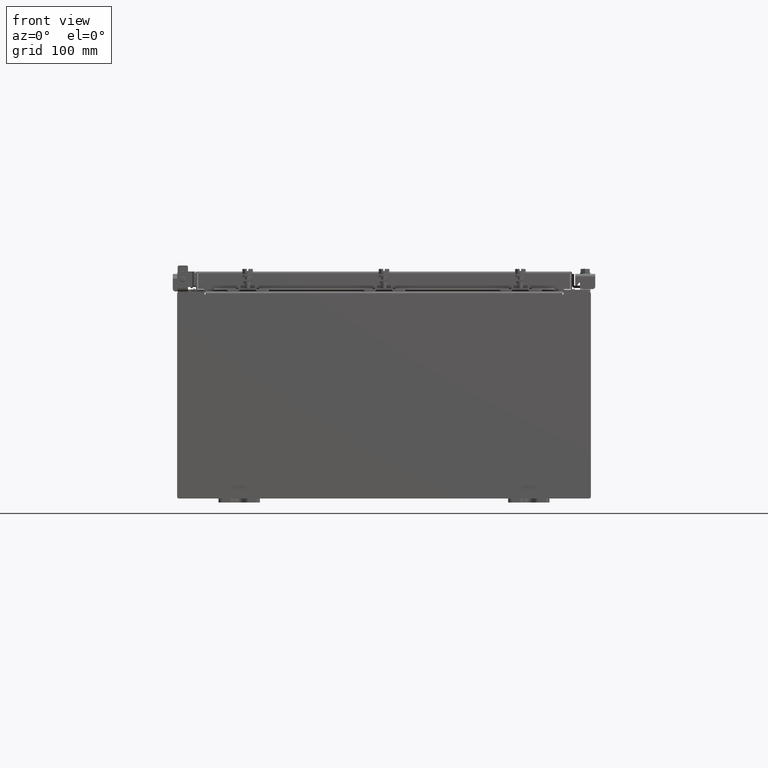
[diagram: clean part render]
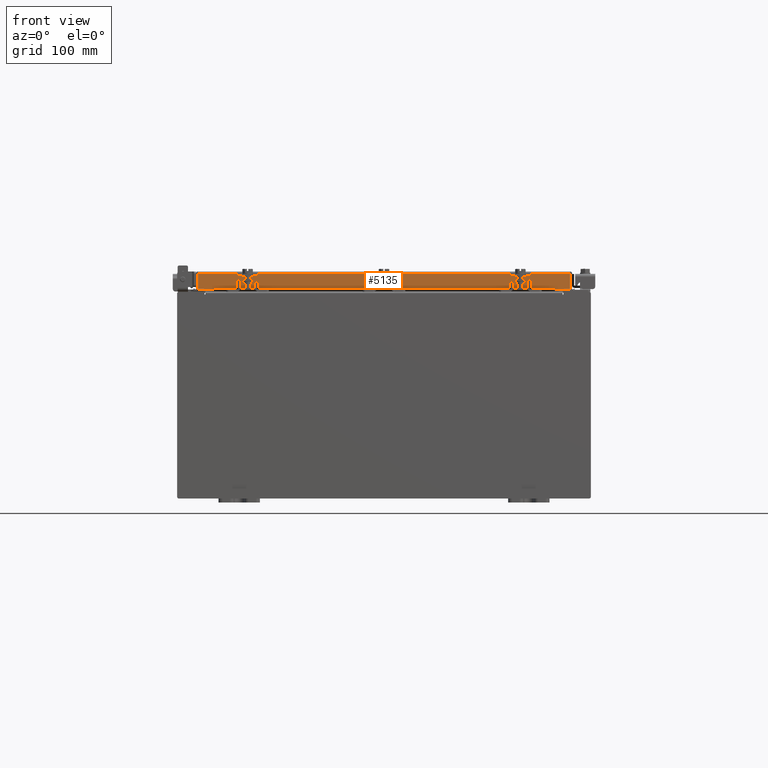
[diagram: same view with one face highlighted and labeled with its STEP entity id]
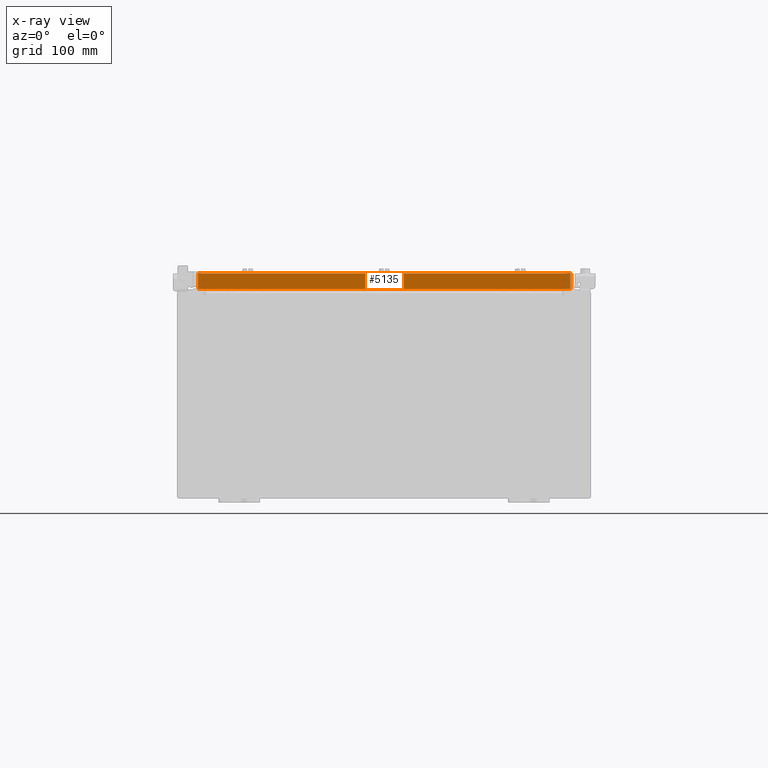
[diagram: x-ray of the same camera — body ghosted, the highlighted face saturated]
A machine part, front view. The second image highlights one B-rep face of the part: STEP entity #5135.
The next image is the same camera in x-ray: the body ghosted, the highlighted face saturated — about 0% of this face is hidden behind the body in this view.
In plain terms, the highlighted planar face has unit normal (-0, 1, -0).
Its self-contained STEP definition (entity closure, byte-faithful):
#613 = ORIENTED_EDGE ( 'NONE', *, *, #21638, .T. ) ;
#1086 = EDGE_CURVE ( 'NONE', #16711, #1733, #19384, .T. ) ;
#1553 = CARTESIAN_POINT ( 'NONE',  ( -9.005157864376270600, -11.09399999999999900, -0.8499999999999977600 ) ) ;
#1733 = VERTEX_POINT ( 'NONE', #8586 ) ;
#2749 = CARTESIAN_POINT ( 'NONE',  ( -8.255157864376268900, -11.09399999999999900, -0.8500000000000020900 ) ) ;
#3091 = LINE ( 'NONE', #7129, #21124 ) ;
#3649 = CARTESIAN_POINT ( 'NONE',  ( 9.005157864376265300, -11.09399999999999800, -0.08770000000000026400 ) ) ;
#3791 = VECTOR ( 'NONE', #6492, 39.37007874015748100 ) ;
#4720 = CARTESIAN_POINT ( 'NONE',  ( 9.093999999999997600, -11.09399999999999900, -0.8499999999999999800 ) ) ;
#4938 = CARTESIAN_POINT ( 'NONE',  ( 9.093999999999997600, -11.09399999999999900, -0.8499999999999999800 ) ) ;
#5135 = ADVANCED_FACE ( 'NONE', ( #12781 ), #18752, .F. ) ;
#5404 = VECTOR ( 'NONE', #11093, 39.37007874015748100 ) ;
#5470 = VECTOR ( 'NONE', #19873, 39.37007874015748100 ) ;
#6166 = ORIENTED_EDGE ( 'NONE', *, *, #10713, .F. ) ;
#6492 = DIRECTION ( 'NONE',  ( -1.000000000000000000, 4.379057701015054300E-047, 1.201604571657912400E-016 ) ) ;
#6495 = EDGE_CURVE ( 'NONE', #1733, #15809, #11711, .T. ) ;
#7129 = CARTESIAN_POINT ( 'NONE',  ( -9.005157864376270600, -11.09399999999999800, 3.059669752903974500E-014 ) ) ;
#7275 = CARTESIAN_POINT ( 'NONE',  ( 9.005157864376265300, -11.09399999999999900, -0.8499999999999999800 ) ) ;
#7841 = VERTEX_POINT ( 'NONE', #3649 ) ;
#8320 = CARTESIAN_POINT ( 'NONE',  ( 0.0000000000000000000, -11.09399999999999800, 3.059669752903974500E-014 ) ) ;
#8550 = ORIENTED_EDGE ( 'NONE', *, *, #17438, .F. ) ;
#8586 = CARTESIAN_POINT ( 'NONE',  ( 8.255157864376261800, -11.09399999999999900, -0.8500000000000020900 ) ) ;
#10044 = DIRECTION ( 'NONE',  ( -3.387180227794633400E-031, 1.000000000000000000, -2.818880942772360100E-015 ) ) ;
#10638 = DIRECTION ( 'NONE',  ( -1.000000000000000000, 0.0000000000000000000, 0.0000000000000000000 ) ) ;
#10713 = EDGE_CURVE ( 'NONE', #7841, #16711, #14645, .T. ) ;
#11093 = DIRECTION ( 'NONE',  ( -0.0000000000000000000, -2.818880942772360100E-015, -1.000000000000000000 ) ) ;
#11548 = ORIENTED_EDGE ( 'NONE', *, *, #1086, .F. ) ;
#11711 = LINE ( 'NONE', #21086, #21036 ) ;
#12470 = DIRECTION ( 'NONE',  ( 1.000000000000000000, 3.387180227794633400E-031, -9.232666117091638000E-046 ) ) ;
#12490 = LINE ( 'NONE', #4720, #3791 ) ;
#12781 = FACE_OUTER_BOUND ( 'NONE', #19741, .T. ) ;
#13715 = LINE ( 'NONE', #21111, #22429 ) ;
#14128 = DIRECTION ( 'NONE',  ( 0.0000000000000000000, -2.818880942772360100E-015, -1.000000000000000000 ) ) ;
#14645 = LINE ( 'NONE', #21547, #5404 ) ;
#15809 = VERTEX_POINT ( 'NONE', #2749 ) ;
#15985 = VERTEX_POINT ( 'NONE', #1553 ) ;
#16388 = ORIENTED_EDGE ( 'NONE', *, *, #22390, .F. ) ;
#16711 = VERTEX_POINT ( 'NONE', #7275 ) ;
#17438 = EDGE_CURVE ( 'NONE', #15809, #15985, #12490, .T. ) ;
#17495 = VERTEX_POINT ( 'NONE', #22239 ) ;
#18061 = ORIENTED_EDGE ( 'NONE', *, *, #6495, .F. ) ;
#18752 = PLANE ( 'NONE',  #20973 ) ;
#19384 = LINE ( 'NONE', #4938, #5470 ) ;
#19741 = EDGE_LOOP ( 'NONE', ( #16388, #613, #8550, #18061, #11548, #6166 ) ) ;
#19873 = DIRECTION ( 'NONE',  ( -1.000000000000000000, 4.379057701015054300E-047, 1.201604571657912400E-016 ) ) ;
#20973 = AXIS2_PLACEMENT_3D ( 'NONE', #8320, #10044, #22224 ) ;
#21036 = VECTOR ( 'NONE', #10638, 39.37007874015748100 ) ;
#21086 = CARTESIAN_POINT ( 'NONE',  ( 8.255157864376261800, -11.09399999999999900, -0.8500000000000020900 ) ) ;
#21111 = CARTESIAN_POINT ( 'NONE',  ( 9.093999999999997600, -11.09399999999999800, -0.08770000000000026400 ) ) ;
#21124 = VECTOR ( 'NONE', #14128, 39.37007874015748100 ) ;
#21547 = CARTESIAN_POINT ( 'NONE',  ( 9.005157864376265300, -11.09399999999999800, -0.07470000000000015500 ) ) ;
#21638 = EDGE_CURVE ( 'NONE', #17495, #15985, #3091, .T. ) ;
#22224 = DIRECTION ( 'NONE',  ( 0.0000000000000000000, 2.818880942772360100E-015, 1.000000000000000000 ) ) ;
#22239 = CARTESIAN_POINT ( 'NONE',  ( -9.005157864376270600, -11.09399999999999800, -0.08770000000000026400 ) ) ;
#22390 = EDGE_CURVE ( 'NONE', #17495, #7841, #13715, .T. ) ;
#22429 = VECTOR ( 'NONE', #12470, 39.37007874015748100 ) ;